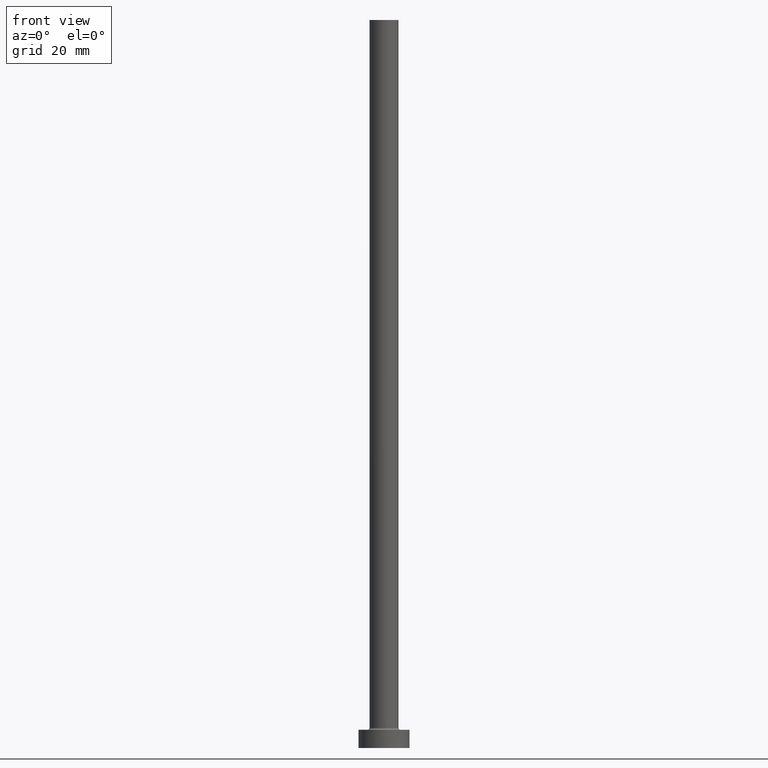
[diagram: clean part render]
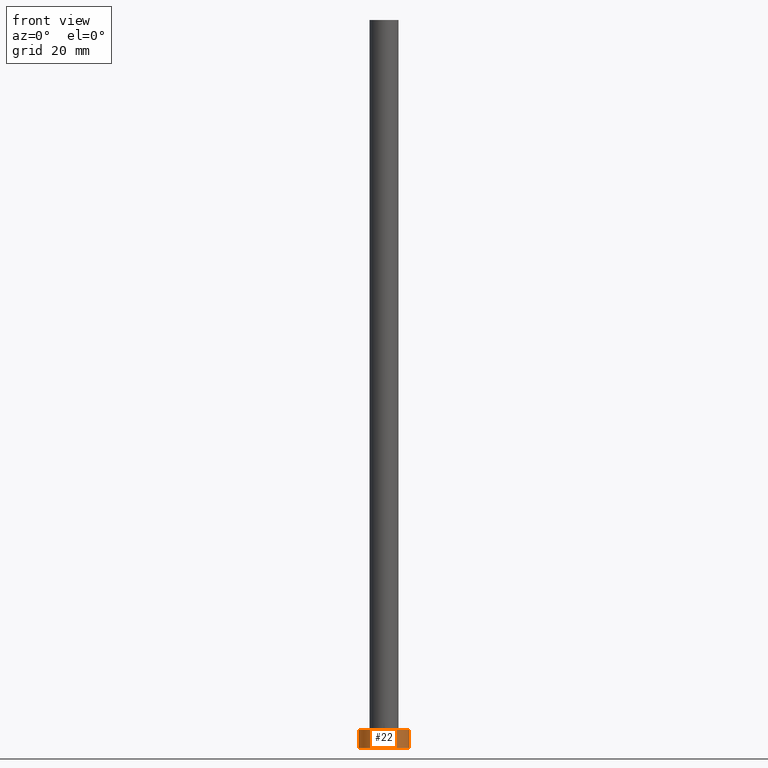
[diagram: same view with one face highlighted and labeled with its STEP entity id]
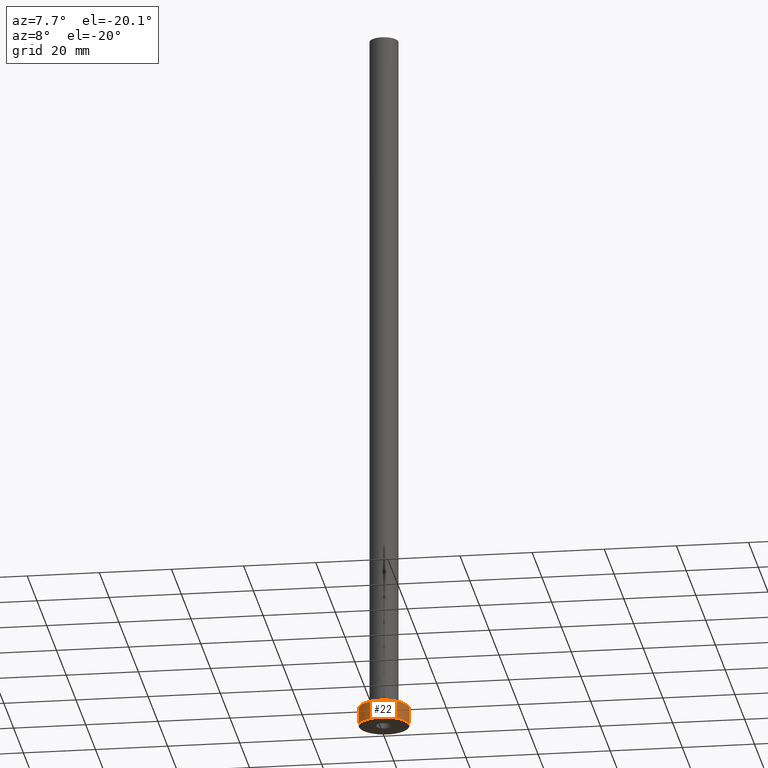
[diagram: same view with one face highlighted and labeled with its STEP entity id]
A machine part, front view. The second image highlights one B-rep face of the part: STEP entity #22.
A second angle (auxiliary view) of the same face is appended — the face is thin or edge-on in the first view.
In plain terms, the highlighted cylindrical surface (edge-blend (fillet) strip) has radius 7 mm, axis along (-0, -0, -1).
Its self-contained STEP definition (entity closure, byte-faithful):
#1 = DIRECTION ( 'NONE',  ( -0.000000000000000000, -0.000000000000000000, -1.000000000000000000 ) ) ;
#2 = VERTEX_POINT ( 'NONE', #295 ) ;
#20 = FACE_OUTER_BOUND ( 'NONE', #108, .T. ) ;
#22 = ADVANCED_FACE ( 'NONE', ( #20 ), #94, .T. ) ;
#28 = CARTESIAN_POINT ( 'NONE',  ( 7.000000000000000000, 8.572527594031473190E-16, 5.000000000000000000 ) ) ;
#37 = DIRECTION ( 'NONE',  ( -0.000000000000000000, -0.000000000000000000, -1.000000000000000000 ) ) ;
#45 = ORIENTED_EDGE ( 'NONE', *, *, #292, .F. ) ;
#59 = DIRECTION ( 'NONE',  ( -0.000000000000000000, -0.000000000000000000, -1.000000000000000000 ) ) ;
#68 = ORIENTED_EDGE ( 'NONE', *, *, #194, .F. ) ;
#75 = ORIENTED_EDGE ( 'NONE', *, *, #258, .T. ) ;
#80 = CARTESIAN_POINT ( 'NONE',  ( -7.000000000000000000, 0.000000000000000000, 5.000000000000000000 ) ) ;
#94 = CYLINDRICAL_SURFACE ( 'NONE', #191, 7.000000000000000000 ) ;
#99 = CARTESIAN_POINT ( 'NONE',  ( 0.000000000000000000, 0.000000000000000000, 0.000000000000000000 ) ) ;
#102 = LINE ( 'NONE', #28, #286 ) ;
#108 = EDGE_LOOP ( 'NONE', ( #45, #68, #257, #75 ) ) ;
#109 = CIRCLE ( 'NONE', #382, 7.000000000000000000 ) ;
#130 = DIRECTION ( 'NONE',  ( 0.000000000000000000, 0.000000000000000000, 1.000000000000000000 ) ) ;
#131 = CARTESIAN_POINT ( 'NONE',  ( 0.000000000000000000, 0.000000000000000000, 5.000000000000000000 ) ) ;
#158 = CARTESIAN_POINT ( 'NONE',  ( 0.000000000000000000, 0.000000000000000000, 5.000000000000000000 ) ) ;
#186 = VERTEX_POINT ( 'NONE', #204 ) ;
#191 = AXIS2_PLACEMENT_3D ( 'NONE', #158, #59, #271 ) ;
#194 = EDGE_CURVE ( 'NONE', #399, #205, #109, .T. ) ;
#204 = CARTESIAN_POINT ( 'NONE',  ( 7.000000000000000000, 8.572527594031473190E-16, 0.000000000000000000 ) ) ;
#205 = VERTEX_POINT ( 'NONE', #309 ) ;
#257 = ORIENTED_EDGE ( 'NONE', *, *, #359, .T. ) ;
#258 = EDGE_CURVE ( 'NONE', #2, #186, #274, .T. ) ;
#264 = VECTOR ( 'NONE', #1, 1000.000000000000000 ) ;
#271 = DIRECTION ( 'NONE',  ( -1.000000000000000000, 0.000000000000000000, 0.000000000000000000 ) ) ;
#274 = CIRCLE ( 'NONE', #440, 7.000000000000000000 ) ;
#276 = DIRECTION ( 'NONE',  ( 1.000000000000000000, 0.000000000000000000, 0.000000000000000000 ) ) ;
#286 = VECTOR ( 'NONE', #37, 1000.000000000000000 ) ;
#292 = EDGE_CURVE ( 'NONE', #205, #186, #102, .T. ) ;
#295 = CARTESIAN_POINT ( 'NONE',  ( -7.000000000000000000, 0.000000000000000000, 0.000000000000000000 ) ) ;
#309 = CARTESIAN_POINT ( 'NONE',  ( 7.000000000000000000, 8.572527594031473190E-16, 5.000000000000000000 ) ) ;
#320 = DIRECTION ( 'NONE',  ( 1.000000000000000000, 0.000000000000000000, 0.000000000000000000 ) ) ;
#332 = CARTESIAN_POINT ( 'NONE',  ( -7.000000000000000000, 0.000000000000000000, 5.000000000000000000 ) ) ;
#355 = DIRECTION ( 'NONE',  ( 0.000000000000000000, 0.000000000000000000, 1.000000000000000000 ) ) ;
#359 = EDGE_CURVE ( 'NONE', #399, #2, #402, .T. ) ;
#382 = AXIS2_PLACEMENT_3D ( 'NONE', #131, #355, #320 ) ;
#399 = VERTEX_POINT ( 'NONE', #332 ) ;
#402 = LINE ( 'NONE', #80, #264 ) ;
#440 = AXIS2_PLACEMENT_3D ( 'NONE', #99, #130, #276 ) ;